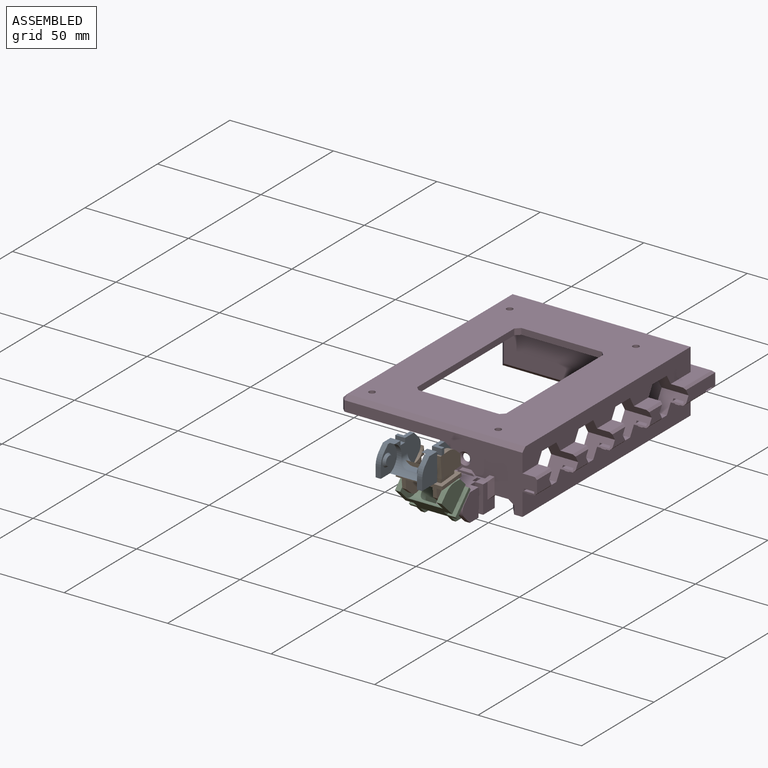
[diagram: assembled view]
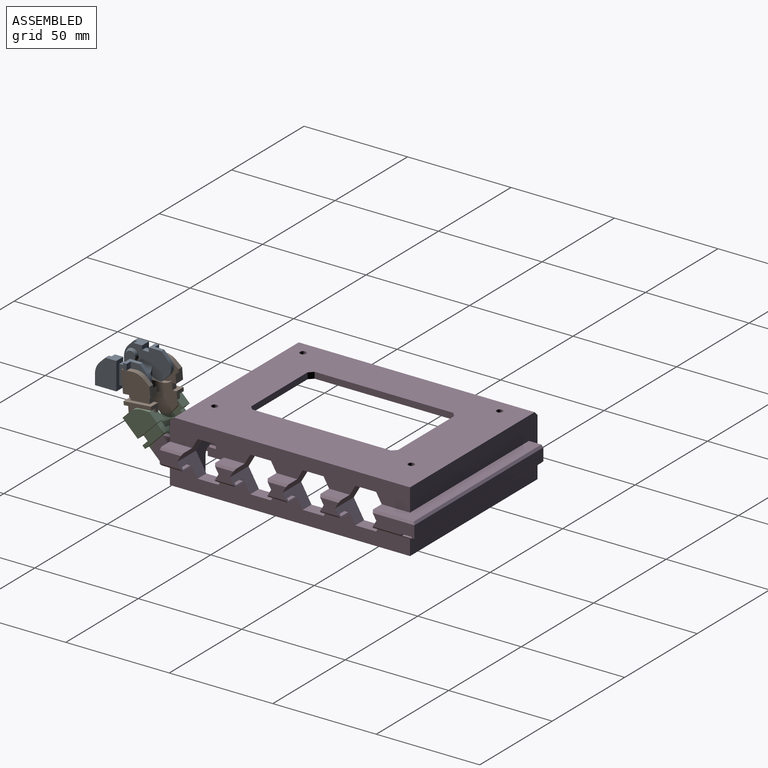
[diagram: assembled view, second angle]
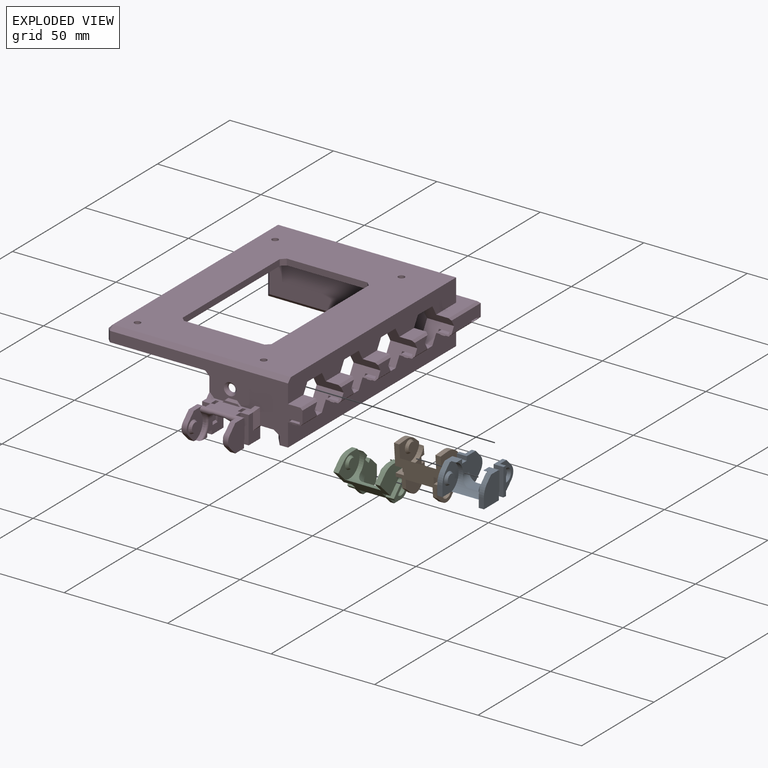
[diagram: exploded view]
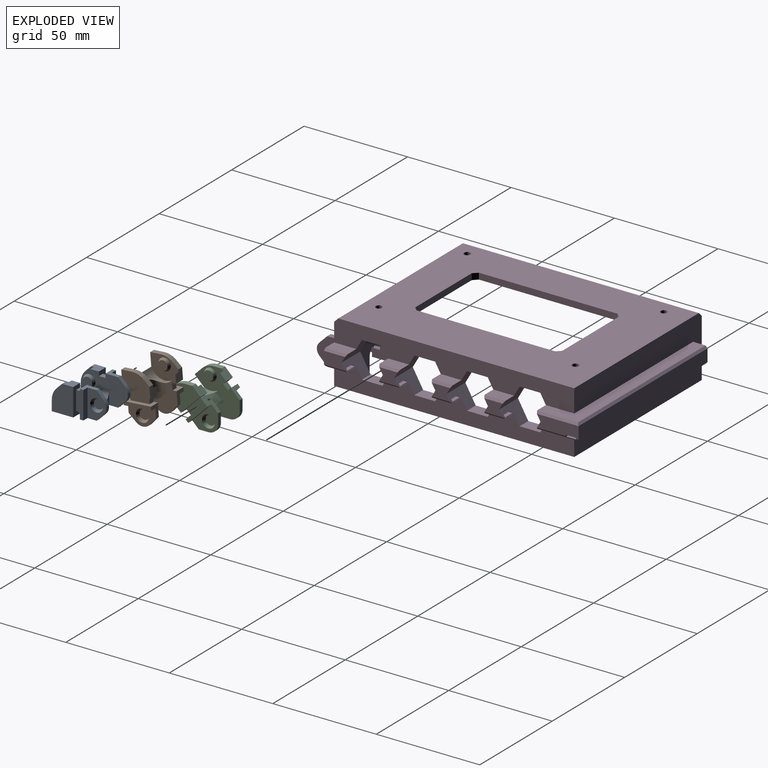
[diagram: exploded view, second angle]
ASSEMBLY  parts=4 mates=3
PART A: 54 faces, bbox 22.5x24.4x13.3 mm
  f0: plane 9.3x3.2mm, normal (-1,0,0), area 29.8mm2, adj f16,f17,f51,f53
  f1: plane 5.35x4.75mm, normal (0,0,1), area 22.5mm2, adj f4,f9,f17,f18,f40,f41
  f2: plane 9.3x3.2mm, normal (1,0,0), area 29.8mm2, adj f24,f25,f49,f52
  f3: plane 5.35x4.75mm, normal (0,0,1), area 22.5mm2, adj f5,f23,f24,f27,f39,f41
  f4: plane 18.07x13.3mm, normal (1,0,0), area 130.5mm2, adj f1,f6,f11,f16,f17,f19,f31,f32
  f5: plane 18.07x13.3mm, normal (-1,0,0), area 130.5mm2, adj f3,f6,f11,f24,f25,f26,f29,f30
  f6: plane 22.5x19.65mm, normal (0,0,-1), area 224.2mm2, adj f4,f5,f7,f8,f11,f13,f14,f15
  f7: plane 4.99x2.5mm, normal (0,-1,0), area 12.5mm2, adj f6,f23,f28,f39
  f8: plane 4.99x2.5mm, normal (0,-1,0), area 12.5mm2, adj f6,f10,f18,f40
  f9: plane 2.66x2.66mm, normal (0,-0.71,0.71), area 9.4mm2, adj f1,f10,f18,f40
  f10: cylinder r=8mm len=5.66mm, axis (1,0,0), area 15.7mm2, adj f8,f9,f18,f40
  f11: plane 13x6mm, normal (0,1,0), area 32.9mm2, adj f4,f5,f6,f12,f35,f36
  f12: plane 5.92x5mm, normal (0,0,1), area 29.6mm2, adj f11,f35,f36,f41
  f13: plane 13.3x9.1mm, normal (-1,0,0), area 67.8mm2, adj f6,f14,f19,f31,f32,f33,f44
  f14: plane 13.3x2.85mm, normal (0,1,0), area 37.9mm2, adj f6,f13,f15,f19
  f15: plane 13.3x1.7mm, normal (-1,0,0), area 22.6mm2, adj f6,f14,f16,f19
  f16: plane 13.3x4.75mm, normal (0,-1,0), area 36.1mm2, adj f0,f4,f6,f15,f19,f50,f51,f53
  f17: plane 13.3x4.75mm, normal (0,1,0), area 36.1mm2, adj f0,f1,f4,f6,f18,f50,f51,f53
  f18: plane 13.3x10.35mm, normal (-1,0,0), area 123.8mm2, adj f1,f6,f8,f9,f10,f17
  f19: plane 6.1x4.75mm, normal (0,0,1), area 16.4mm2, adj f4,f13,f14,f15,f16,f31
  f20: plane 13.3x1.7mm, normal (1,0,0), area 22.6mm2, adj f6,f21,f25,f26
  f21: plane 13.3x2.85mm, normal (0,1,0), area 37.9mm2, adj f6,f20,f22,f26
  f22: plane 13.3x9.1mm, normal (1,0,0), area 67.8mm2, adj f6,f21,f26,f29,f30,f34,f37
  f23: plane 13.3x10.35mm, normal (1,0,0), area 123.8mm2, adj f3,f6,f7,f24,f27,f28
  f24: plane 13.3x4.75mm, normal (0,1,0), area 36.1mm2, adj f2,f3,f5,f6,f23,f48,f49,f52
  f25: plane 13.3x4.75mm, normal (0,-1,0), area 36.1mm2, adj f2,f5,f6,f20,f26,f48,f49,f52
  f26: plane 6.1x4.75mm, normal (0,0,1), area 16.4mm2, adj f5,f20,f21,f22,f25,f29
  f27: plane 2.66x2.66mm, normal (0,-0.71,0.71), area 9.4mm2, adj f3,f23,f28,f39
  f28: cylinder r=8mm len=5.66mm, axis (1,0,0), area 15.7mm2, adj f7,f23,f27,f39
  f29: plane 3.33x3.33mm, normal (0,0.71,0.71), area 8.9mm2, adj f5,f22,f26,f34
  f30: plane 3.33x3.33mm, normal (0,0.71,-0.71), area 8.9mm2, adj f5,f6,f22,f34
  f31: plane 3.33x3.33mm, normal (0,0.71,0.71), area 8.9mm2, adj f4,f13,f19,f33
  f32: plane 3.33x3.33mm, normal (0,0.71,-0.71), area 8.9mm2, adj f4,f6,f13,f33
  f33: cylinder r=4.7mm len=6.65mm, axis (-1,0,0), area 14mm2, adj f4,f13,f31,f32
  f34: cylinder r=4.7mm len=6.65mm, axis (-1,0,0), area 14mm2, adj f5,f22,f29,f30
  f35: cylinder r=4mm len=5.92mm, axis (0,1,0), area 31.9mm2, adj f4,f11,f12,f41
  f36: cylinder r=4mm len=5.92mm, axis (0,-1,0), area 31.9mm2, adj f5,f11,f12,f41
  f37: cone r=3.1mm half-angle=30deg, axis (1,0,0), area 27.4mm2, adj f22,f38
  f38: plane 4.58x4.58mm, normal (1,0,0), area 16.5mm2, adj f37
  f39: plane 13.3x11.1mm, normal (-1,0,0), area 88.3mm2, adj f3,f6,f7,f27,f28,f41,f42
  f40: plane 13.3x11.1mm, normal (1,0,0), area 88.3mm2, adj f1,f6,f8,f9,f10,f41,f46
  f41: cylinder r=7mm len=17.5mm, axis (1,0,0), area 135.2mm2, adj f1,f3,f4,f5,f6,f12,f35,f36
  f42: cone r=3mm half-angle=30deg, axis (1,0,0), area 23.9mm2, adj f39,f43
  f43: plane 4.56x4.56mm, normal (-1,0,0), area 16.3mm2, adj f42
  f44: cone r=3.1mm half-angle=30deg, axis (-1,0,0), area 27.4mm2, adj f13,f45
  f45: plane 4.58x4.58mm, normal (-1,0,0), area 16.5mm2, adj f44
  f46: cone r=3mm half-angle=30deg, axis (-1,0,0), area 23.9mm2, adj f40,f47
  f47: plane 4.56x4.56mm, normal (1,0,0), area 16.3mm2, adj f46
  f48: plane 3.2x2mm, normal (1,0,0), area 6.4mm2, adj f6,f24,f25,f49
  f49: plane 3.2x2mm, normal (0,0,-1), area 6.4mm2, adj f2,f24,f25,f48
  f50: plane 3.2x2mm, normal (-1,0,0), area 6.4mm2, adj f6,f16,f17,f51
  f51: plane 3.2x2mm, normal (0,0,-1), area 6.4mm2, adj f0,f16,f17,f50
  f52: plane 3.2x2.75mm, normal (0,0,1), area 8.8mm2, adj f2,f5,f24,f25
  f53: plane 3.2x2.75mm, normal (0,0,1), area 8.8mm2, adj f0,f4,f16,f17
PART B: same geometry as A
PART C: same geometry as A
PART D: 229 faces, bbox 142.5x95.3x33.7 mm
  f0: plane 9.3x1.7mm, normal (1,0,0), area 11.3mm2, adj f1,f2,f8,f9,f10,f207,f212
  f1: plane 3.53x3.4mm, normal (0,-1,0), area 12mm2, adj f0,f8,f10,f208
  f2: plane 8.5x3.4mm, normal (0,1,0), area 28.9mm2, adj f0,f8,f208,f212
  f3: plane 3.53x3.4mm, normal (0,1,0), area 12mm2, adj f4,f8,f186,f210
  f4: plane 9.3x1.7mm, normal (1,0,0), area 11.3mm2, adj f3,f5,f8,f175,f186,f209,f211
  f5: plane 8.5x3.4mm, normal (0,-1,0), area 28.9mm2, adj f4,f8,f210,f211
  f6: plane 2.4x2mm, normal (0.71,0,-0.71), area 4mm2, adj f8,f43,f167,f221
  f7: plane 4.4x2mm, normal (0.71,0,-0.71), area 6.8mm2, adj f8,f43,f214,f222
  f8: plane 22.5x14.2mm, normal (0,0,-1), area 168.2mm2, adj f0,f1,f2,f3,f4,f5,f6,f7
  f9: plane 13.84x7.3mm, normal (0,1,0), area 64mm2, adj f0,f10,f18,f55,f168,f171,f172,f185
  f10: cylinder r=4mm len=12.06mm, axis (-1,0,0), area 62.5mm2, adj f0,f1,f9,f55,f178,f197,f198,f208
  f11: plane 2.5x0.03mm, normal (1,0,0), area 0.1mm2, adj f14,f15,f169,f194
  f12: plane 3.84x3.84mm, normal (0.71,0,0.71), area 13.6mm2, adj f14,f18,f169,f194
  f13: plane 3.84x3.84mm, normal (0.71,0,-0.71), area 13.6mm2, adj f8,f15,f169,f194
  f14: cylinder r=3.95mm len=2.79mm, axis (0,1,0), area 7.8mm2, adj f11,f12,f169,f194
  f15: cylinder r=3.95mm len=2.79mm, axis (0,1,0), area 7.8mm2, adj f11,f13,f169,f194
  f16: plane 9.3x3.2mm, normal (0,-1,0), area 29.8mm2, adj f168,f171,f184,f185
  f17: plane 9.3x3.2mm, normal (0,1,0), area 29.8mm2, adj f173,f174,f180,f182
  f18: plane 6.32x5.07mm, normal (0,0,1), area 25.1mm2, adj f9,f12,f168,f169,f193,f194,f196
  f19: plane 6.32x5.07mm, normal (0,0,1), area 25.1mm2, adj f173,f175,f176,f187,f191,f195,f202
  f20: plane 106x25mm, normal (0,1,0), area 1541.8mm2, adj f42,f67,f68,f69,f70,f71,f72,f73
  f21: plane 20.13x6mm, normal (0,-1,0), area 112.6mm2, adj f85,f90,f105,f106,f108,f141,f164,f165
  f22: plane 88x19.71mm, normal (0,0,1), area 380.6mm2, adj f23,f31,f40,f45,f90,f104,f106,f107
  f23: plane 13.83x0.2mm, normal (0,-0.71,0.71), area 3.9mm2, adj f22,f27,f90,f138
  f24: plane 10.25x0.2mm, normal (0,-0.71,0.71), area 2.9mm2, adj f28,f35,f84,f88
  f25: plane 10.25x0.2mm, normal (0,-0.71,0.71), area 2.9mm2, adj f29,f36,f73,f82
  f26: plane 10.25x0.2mm, normal (0,-0.71,0.71), area 2.9mm2, adj f30,f37,f72,f77
  f27: plane 13.83x2mm, normal (0,0,1), area 27.6mm2, adj f23,f31,f90,f138
  f28: plane 10.25x2mm, normal (0,0,1), area 20.5mm2, adj f24,f32,f84,f88
  f29: plane 10.25x2mm, normal (0,0,1), area 20.5mm2, adj f25,f33,f73,f82
  f30: plane 10.25x2mm, normal (0,0,1), area 20.5mm2, adj f26,f34,f72,f77
  f31: plane 13.83x0.2mm, normal (0,0.71,0.71), area 3.9mm2, adj f22,f27,f90,f138
  f32: plane 10.25x0.2mm, normal (0,0.71,0.71), area 2.9mm2, adj f28,f84,f88,f92
  f33: plane 10.25x0.2mm, normal (0,0.71,0.71), area 2.9mm2, adj f29,f73,f82,f95
  f34: plane 10.25x0.2mm, normal (0,0.71,0.71), area 2.9mm2, adj f30,f72,f77,f98
  f35: plane 10.02x1.6mm, normal (0,0,1), area 16mm2, adj f24,f84,f88,f110
  f36: plane 10.02x1.6mm, normal (0,0,1), area 16mm2, adj f25,f73,f82,f113
  f37: plane 10.02x1.6mm, normal (0,0,1), area 16mm2, adj f26,f72,f77,f114
  f38: plane 10.71x1.6mm, normal (0,0,1), area 17.1mm2, adj f43,f70,f117,f135
  f39: plane 116x88mm, normal (0,0,1), area 808mm2, adj f40,f43,f44,f45,f120,f122,f123
  f40: plane 116x11mm, normal (0,-1,0), area 1039.4mm2, adj f22,f39,f43,f45,f70,f71,f72,f73
  f41: plane 116x11mm, normal (0,-1,0), area 1037.4mm2, adj f43,f45,f54,f67,f68,f69,f74,f75
  f42: plane 107x79mm, normal (0,0,1), area 5246.1mm2, adj f20,f46,f47,f48,f52,f55,f56,f58
  f43: plane 93x28mm, normal (1,0,0), area 957.8mm2, adj f6,f7,f8,f38,f39,f40,f41,f57
  f44: plane 114x28mm, normal (0,1,0), area 664.8mm2, adj f39,f45,f57,f119,f125,f126,f219
  f45: plane 88x30mm, normal (-1,0,0), area 1982mm2, adj f22,f39,f40,f41,f44,f54,f91,f104
  f46: plane 67x3mm, normal (0,1,0), area 201mm2, adj f42,f54,f131,f133
  f47: plane 39x3mm, normal (1,0,0), area 117mm2, adj f42,f54,f131,f132
  f48: plane 67x3mm, normal (0,-1,0), area 201mm2, adj f42,f54,f132,f134
  f49: cylinder r=1.5mm len=8mm, axis (0,0,1), area 75.4mm2, adj f54,f63
  f50: cylinder r=1.5mm len=8mm, axis (0,0,1), area 75.4mm2, adj f54,f61
  f51: cylinder r=1.5mm len=8mm, axis (0,0,1), area 75.4mm2, adj f54,f59
  f52: plane 39x3mm, normal (-1,0,0), area 117mm2, adj f42,f54,f133,f134
  f53: cylinder r=1.5mm len=8mm, axis (0,0,1), area 75.4mm2, adj f54,f65
  f54: plane 114x86mm, normal (0,0,-1), area 6730.7mm2, adj f41,f45,f46,f47,f48,f49,f50,f51
  f55: plane 75x28.3mm, normal (-1,0,0), area 809.9mm2, adj f9,f10,f42,f57,f118,f130,f166,f167
  f56: plane 103x4mm, normal (0,-1,0), area 412mm2, adj f42,f57,f129,f130
  f57: plane 109.17x48mm, normal (0,0,1), area 459.7mm2, adj f43,f44,f55,f56,f125,f130,f218,f219
  f58: cylinder r=3.5mm len=7mm, axis (0,0,-1), area 110mm2, adj f42,f59
  f59: plane 7x7mm, normal (0,0,1), area 31.4mm2, adj f51,f58
  f60: cylinder r=3.5mm len=7mm, axis (0,0,-1), area 110mm2, adj f42,f61
  f61: plane 7x7mm, normal (0,0,1), area 31.4mm2, adj f50,f60
  f62: cylinder r=3.5mm len=7mm, axis (0,0,-1), area 110mm2, adj f42,f63
  f63: plane 7x7mm, normal (0,0,1), area 31.4mm2, adj f49,f62
  f64: cylinder r=3.5mm len=7mm, axis (0,0,-1), area 110mm2, adj f42,f65
  f65: plane 7x7mm, normal (0,0,1), area 31.4mm2, adj f53,f64
  f66: plane 78x25mm, normal (1,0,0), area 1932mm2, adj f42,f119,f120,f121,f129,f220
  f67: plane 13x8.66mm, normal (0.87,0,0.5), area 91.8mm2, adj f20,f41,f68,f72,f99,f100,f115
  f68: plane 10x6mm, normal (0,0,1), area 60mm2, adj f20,f41,f67,f69
  f69: plane 13x8.66mm, normal (-0.87,0,0.5), area 91.8mm2, adj f20,f41,f68,f70,f102,f103,f116
  f70: plane 13x8.66mm, normal (-0.87,0,-0.5), area 86.5mm2, adj f20,f38,f40,f69,f71,f101,f103,f117
  f71: plane 10x6mm, normal (0,0,-1), area 60mm2, adj f20,f40,f70,f72
  f72: plane 13x8.66mm, normal (0.87,0,-0.5), area 86.5mm2, adj f20,f26,f30,f34,f37,f40,f67,f71
  f73: plane 13x8.66mm, normal (0.87,0,-0.5), area 86.5mm2, adj f20,f25,f29,f33,f36,f40,f74,f78
  f74: plane 13x8.66mm, normal (0.87,0,0.5), area 91.8mm2, adj f20,f41,f73,f75,f96,f97,f112
  f75: plane 10x6mm, normal (0,0,1), area 60mm2, adj f20,f41,f74,f76
  f76: plane 13x8.66mm, normal (-0.87,0,0.5), area 91.8mm2, adj f20,f41,f75,f77,f99,f100,f115
  f77: plane 13x8.66mm, normal (-0.87,0,-0.5), area 86.5mm2, adj f20,f26,f30,f34,f37,f40,f76,f78
  f78: plane 10x6mm, normal (0,0,-1), area 60mm2, adj f20,f40,f73,f77
  f79: plane 13x8.66mm, normal (0.87,0,0.5), area 91.8mm2, adj f20,f41,f80,f84,f93,f94,f111
  f80: plane 10x6mm, normal (0,0,1), area 60mm2, adj f20,f41,f79,f81
  f81: plane 13x8.66mm, normal (-0.87,0,0.5), area 91.8mm2, adj f20,f41,f80,f82,f96,f97,f112
  f82: plane 13x8.66mm, normal (-0.87,0,-0.5), area 86.5mm2, adj f20,f25,f29,f33,f36,f40,f81,f83
  f83: plane 10x6mm, normal (0,0,-1), area 60mm2, adj f20,f40,f82,f84
  f84: plane 13x8.66mm, normal (0.87,0,-0.5), area 86.5mm2, adj f20,f24,f28,f32,f35,f40,f79,f83
  f85: plane 13x8.66mm, normal (0.87,0,0.5), area 91.8mm2, adj f20,f21,f41,f86,f90,f91,f108
  f86: plane 10x6mm, normal (0,0,1), area 60mm2, adj f20,f41,f85,f87
  f87: plane 13x8.66mm, normal (-0.87,0,0.5), area 91.8mm2, adj f20,f41,f86,f88,f93,f94,f111
  f88: plane 13x8.66mm, normal (-0.87,0,-0.5), area 86.5mm2, adj f20,f24,f28,f32,f35,f40,f87,f89
  f89: plane 10x6mm, normal (0,0,-1), area 60mm2, adj f20,f40,f88,f90
  f90: plane 13x8.66mm, normal (0.87,0,-0.5), area 86.5mm2, adj f20,f21,f22,f23,f27,f31,f40,f85
  f91: plane 88x19.71mm, normal (0,0,-1), area 610.3mm2, adj f41,f45,f85,f104,f108,f109
  f92: plane 10.02x2mm, normal (0,0,1), area 20mm2, adj f32,f40,f84,f88
  f93: plane 10.02x6mm, normal (0,0,-1), area 60.1mm2, adj f41,f79,f87,f111
  f94: plane 8.86x6mm, normal (0,-1,0), area 42.8mm2, adj f79,f84,f87,f88,f110,f111
  f95: plane 10.02x2mm, normal (0,0,1), area 20mm2, adj f33,f40,f73,f82
  f96: plane 10.02x6mm, normal (0,0,-1), area 60.1mm2, adj f41,f74,f81,f112
  f97: plane 8.86x6mm, normal (0,-1,0), area 42.8mm2, adj f73,f74,f81,f82,f112,f113
  f98: plane 10.02x2mm, normal (0,0,1), area 20mm2, adj f34,f40,f72,f77
  f99: plane 10.02x6mm, normal (0,0,-1), area 60.1mm2, adj f41,f67,f76,f115
  f100: plane 8.86x6mm, normal (0,-1,0), area 42.8mm2, adj f67,f72,f76,f77,f114,f115
  f101: plane 10.71x2mm, normal (0,0,1), area 21.4mm2, adj f40,f43,f70,f137
  f102: plane 10.71x6mm, normal (0,0,-1), area 64.3mm2, adj f41,f43,f69,f116
  f103: plane 10.13x6mm, normal (0,-1,0), area 55.6mm2, adj f43,f69,f70,f116,f117
  f104: plane 8.2x7mm, normal (0,1,0), area 50.4mm2, adj f22,f45,f91,f105,f107,f109,f139,f141
  f105: plane 89x6mm, normal (-1,0,0), area 534mm2, adj f21,f104,f107,f109
  f106: plane 20.71x1mm, normal (0,-0.71,0.71), area 25.3mm2, adj f21,f22,f90,f107,f139,f164,f165
  f107: plane 89x1mm, normal (-0.71,0,0.71), area 125.2mm2, adj f22,f104,f105,f106
  f108: plane 20.71x1mm, normal (0,-0.71,-0.71), area 28.2mm2, adj f21,f85,f91,f109
  f109: plane 89x1mm, normal (-0.71,0,-0.71), area 125.2mm2, adj f91,f104,f105,f108
  f110: plane 10.02x1mm, normal (0,-0.71,0.71), area 13.4mm2, adj f35,f84,f88,f94
  f111: plane 10.02x1mm, normal (0,-0.71,-0.71), area 13.4mm2, adj f79,f87,f93,f94
  f112: plane 10.02x1mm, normal (0,-0.71,-0.71), area 13.4mm2, adj f74,f81,f96,f97
  f113: plane 10.02x1mm, normal (0,-0.71,0.71), area 13.4mm2, adj f36,f73,f82,f97
  f114: plane 10.02x1mm, normal (0,-0.71,0.71), area 13.4mm2, adj f37,f72,f77,f100
  f115: plane 10.02x1mm, normal (0,-0.71,-0.71), area 13.4mm2, adj f67,f76,f99,f100
  f116: plane 10.71x1mm, normal (0,-0.71,-0.71), area 14.7mm2, adj f43,f69,f102,f103
  f117: plane 10.71x1mm, normal (0,-0.71,0.71), area 14.7mm2, adj f38,f43,f70,f103
  f118: plane 23x2mm, normal (-0.71,0.71,0), area 62.2mm2, adj f20,f42,f55,f217
  f119: plane 21x2mm, normal (0.71,0.71,0), area 56.6mm2, adj f44,f66,f120,f219
  f120: plane 80x2mm, normal (0.71,0,0.71), area 223.4mm2, adj f39,f66,f119,f122
  f121: plane 25x2mm, normal (0.71,0.71,0), area 70.7mm2, adj f20,f42,f66,f122
  f122: plane 4x4mm, normal (0.58,0.58,0.58), area 10.4mm2, adj f39,f120,f121,f123
  f123: plane 108x2mm, normal (0,0.71,0.71), area 302.6mm2, adj f20,f39,f122,f124
  f124: plane 4x2mm, normal (0.71,0.71,0), area 8.5mm2, adj f20,f43,f123,f216
  f125: plane 5x2mm, normal (0.71,0.71,0), area 14.1mm2, adj f43,f44,f57,f127
  f126: plane 114x2mm, normal (0,0.71,-0.71), area 322.4mm2, adj f44,f45,f54,f127
  f127: plane 2x2mm, normal (0.58,0.58,-0.58), area 3.5mm2, adj f125,f126,f128
  f128: plane 86x2mm, normal (0.71,0,-0.71), area 243.2mm2, adj f41,f43,f54,f127
  f129: plane 6x2mm, normal (0.71,-0.71,0), area 14.1mm2, adj f42,f56,f66,f220
  f130: plane 4x2mm, normal (-0.71,-0.71,0), area 11.3mm2, adj f42,f55,f56,f57
  f131: plane 3x2mm, normal (0.71,0.71,0), area 8.5mm2, adj f42,f46,f47,f54
  f132: plane 3x2mm, normal (0.71,-0.71,0), area 8.5mm2, adj f42,f47,f48,f54
  f133: plane 3x2mm, normal (-0.71,0.71,0), area 8.5mm2, adj f42,f46,f52,f54
  f134: plane 3x2mm, normal (-0.71,-0.71,0), area 8.5mm2, adj f42,f48,f52,f54
  f135: plane 10.83x0.2mm, normal (0,-0.71,0.71), area 3mm2, adj f38,f43,f70,f136
  f136: plane 10.83x2mm, normal (0,0,1), area 21.6mm2, adj f43,f70,f135,f137
  f137: plane 10.83x0.2mm, normal (0,0.71,0.71), area 3mm2, adj f43,f70,f101,f136
  f138: plane 2.4x0.2mm, normal (-1,0,0), area 0.4mm2, adj f22,f23,f27,f31
  f139: plane 88.6x19.06mm, normal (0,0,-1), area 513.3mm2, adj f90,f104,f106,f140,f142,f163,f164,f165
  f140: plane 14.06x1mm, normal (0,1,0), area 13.8mm2, adj f90,f139,f141,f164
  f141: plane 89x18.49mm, normal (0,0,1), area 512.4mm2, adj f21,f90,f104,f140,f142,f163,f164,f165
  f142: plane 14.06x1mm, normal (0,-1,0), area 13.8mm2, adj f90,f139,f141,f163
  f143: plane 9.33x5mm, normal (0,0,-1), area 46.6mm2, adj f84,f88,f144,f146
  f144: plane 9.33x1mm, normal (0,1,0), area 8.7mm2, adj f84,f88,f143,f145
  f145: plane 8.17x5mm, normal (0,0,1), area 40.9mm2, adj f84,f88,f144,f146
  f146: plane 9.33x1mm, normal (0,-1,0), area 8.7mm2, adj f84,f88,f143,f145
  f147: plane 9.33x5mm, normal (0,0,-1), area 46.6mm2, adj f73,f82,f148,f150
  f148: plane 9.33x1mm, normal (0,1,0), area 8.7mm2, adj f73,f82,f147,f149
  f149: plane 8.17x5mm, normal (0,0,1), area 40.9mm2, adj f73,f82,f148,f150
  f150: plane 9.33x1mm, normal (0,-1,0), area 8.7mm2, adj f73,f82,f147,f149
  f151: plane 9.33x5mm, normal (0,0,-1), area 46.6mm2, adj f72,f77,f152,f154
  f152: plane 9.33x1mm, normal (0,1,0), area 8.7mm2, adj f72,f77,f151,f153
  f153: plane 8.17x5mm, normal (0,0,1), area 40.9mm2, adj f72,f77,f152,f154
  f154: plane 9.33x1mm, normal (0,-1,0), area 8.7mm2, adj f72,f77,f151,f153
  f155: plane 10.36x1mm, normal (0,-1,0), area 10.1mm2, adj f43,f70,f156,f158
  f156: plane 9.79x5mm, normal (0,0,1), area 48.9mm2, adj f43,f70,f155,f157
  f157: plane 10.36x1mm, normal (0,1,0), area 10.1mm2, adj f43,f70,f156,f158
  f158: plane 10.36x5mm, normal (0,0,-1), area 51.8mm2, adj f43,f70,f155,f157
  f159: plane 2.4x0.2mm, normal (0,-1,0), area 0.4mm2, adj f22,f160,f161,f162
  f160: plane 82x0.2mm, normal (-0.71,0,0.71), area 23.2mm2, adj f22,f104,f159,f161
  f161: plane 82x2mm, normal (0,0,1), area 164mm2, adj f104,f159,f160,f162
  f162: plane 82x0.2mm, normal (0.71,0,0.71), area 23.2mm2, adj f22,f104,f159,f161
  f163: plane 82.7x1mm, normal (-1,0,0), area 82.7mm2, adj f104,f139,f141,f142
  f164: plane 1.3x1mm, normal (-1,0,0), area 1.2mm2, adj f21,f106,f139,f140,f141
  f165: plane 89x1mm, normal (1,0,0), area 88.9mm2, adj f21,f104,f106,f139,f141
  f166: plane 13.3x8mm, normal (0,-1,0), area 66.4mm2, adj f8,f55,f171,f172,f213,f214
  f167: plane 22.3x8mm, normal (0,1,0), area 135.4mm2, adj f6,f8,f43,f55,f174,f177,f218
  f168: plane 13.3x4.75mm, normal (-1,0,0), area 36.1mm2, adj f8,f9,f16,f18,f169,f183,f184,f185
  f169: plane 13.3x11mm, normal (0,-1,0), area 120.6mm2, adj f8,f11,f12,f13,f14,f15,f18,f168
  f170: plane 2.5x0.03mm, normal (1,0,0), area 0.1mm2, adj f176,f189,f190,f195
  f171: plane 13.3x4.75mm, normal (1,0,0), area 36.1mm2, adj f8,f9,f16,f166,f172,f183,f184,f185
  f172: plane 8x4.75mm, normal (0,0,1), area 38mm2, adj f9,f55,f166,f171
  f173: plane 13.3x4.75mm, normal (-1,0,0), area 36.1mm2, adj f8,f17,f19,f175,f176,f180,f181,f182
  f174: plane 13.3x4.75mm, normal (1,0,0), area 36.1mm2, adj f8,f17,f167,f175,f177,f180,f181,f182
  f175: plane 13.84x7.3mm, normal (0,-1,0), area 64mm2, adj f4,f19,f55,f173,f174,f177,f180,f186
  f176: plane 13.3x11mm, normal (0,1,0), area 120.6mm2, adj f8,f19,f170,f173,f187,f188,f189,f190
  f177: plane 8x4.75mm, normal (0,0,1), area 38mm2, adj f55,f167,f174,f175
  f178: plane 12.06x5mm, normal (0,0,1), area 60.3mm2, adj f10,f55,f186,f199
  f179: plane 6.67x3mm, normal (0,0,1), area 17.2mm2, adj f43,f55,f213,f216,f217
  f180: plane 3.2x2.75mm, normal (0,0,1), area 8.8mm2, adj f17,f173,f174,f175
  f181: plane 3.2x2mm, normal (0,1,0), area 6.4mm2, adj f8,f173,f174,f182
  f182: plane 3.2x2mm, normal (0,0,-1), area 6.4mm2, adj f17,f173,f174,f181
  f183: plane 3.2x2mm, normal (0,-1,0), area 6.4mm2, adj f8,f168,f171,f184
  f184: plane 3.2x2mm, normal (0,0,-1), area 6.4mm2, adj f16,f168,f171,f183
  f185: plane 3.2x2.75mm, normal (0,0,1), area 8.8mm2, adj f9,f16,f168,f171
  f186: cylinder r=4mm len=12.06mm, axis (1,0,0), area 62.5mm2, adj f3,f4,f55,f175,f178,f200,f201,f210
  f187: plane 3.84x3.84mm, normal (0.71,0,0.71), area 13.6mm2, adj f19,f176,f189,f195
  f188: plane 3.84x3.84mm, normal (0.71,0,-0.71), area 13.6mm2, adj f8,f176,f190,f195
  f189: cylinder r=3.95mm len=2.79mm, axis (0,1,0), area 7.8mm2, adj f170,f176,f187,f195
  f190: cylinder r=3.95mm len=2.79mm, axis (0,1,0), area 7.8mm2, adj f170,f176,f188,f195
  f191: cylinder r=7mm len=11.13mm, axis (0,1,0), area 22mm2, adj f19,f192,f195,f201,f202
  f192: cylinder r=1.33mm len=17.5mm, axis (0,1,0), area 39.4mm2, adj f8,f191,f193,f194,f195,f198,f199,f200
  f193: cylinder r=7mm len=11.13mm, axis (0,1,0), area 22mm2, adj f18,f192,f194,f196,f197
  f194: plane 13.3x11.1mm, normal (0,1,0), area 79.1mm2, adj f8,f11,f12,f13,f14,f15,f18,f192
  f195: plane 13.3x11.1mm, normal (0,-1,0), area 79.1mm2, adj f8,f19,f170,f187,f188,f189,f190,f191
  f196: torus R=7.9mm, axis (0,-1,0), area 12.5mm2, adj f9,f18,f193,f197
  f197: bspline ~5.04x3.79mm, area 5.8mm2, adj f10,f193,f196,f198
  f198: bspline ~2.3x1.9mm, area 3.3mm2, adj f10,f192,f197,f199
  f199: cylinder r=0.9mm len=5mm, axis (0,1,0), area 9.6mm2, adj f178,f192,f198,f200
  f200: bspline ~2.55x1.92mm, area 3.3mm2, adj f186,f192,f199,f201
  f201: bspline ~5.04x3.79mm, area 5.8mm2, adj f186,f191,f200,f202
  f202: torus R=7.9mm, axis (0,1,0), area 12.5mm2, adj f19,f175,f191,f201
  f203: cone r=3mm half-angle=30deg, axis (0,1,0), area 23.9mm2, adj f195,f204
  f204: plane 4.56x4.56mm, normal (0,-1,0), area 16.3mm2, adj f203
  f205: cone r=3mm half-angle=30deg, axis (0,-1,0), area 23.9mm2, adj f194,f206
  f206: plane 4.56x4.56mm, normal (0,1,0), area 16.3mm2, adj f205
  f207: plane 3.4x0.05mm, normal (0,0,-1), area 0.2mm2, adj f0,f9,f208,f212
  f208: plane 9.3x1.7mm, normal (-1,0,0), area 11.3mm2, adj f1,f2,f8,f9,f10,f207,f212
  f209: plane 3.4x0.05mm, normal (0,0,-1), area 0.2mm2, adj f4,f175,f210,f211
  f210: plane 9.3x1.7mm, normal (-1,0,0), area 11.3mm2, adj f3,f5,f8,f175,f186,f209,f211
  f211: plane 3.4x0.8mm, normal (0,-0.71,-0.71), area 3.8mm2, adj f4,f5,f209,f210
  f212: plane 3.4x0.8mm, normal (0,0.71,-0.71), area 3.8mm2, adj f0,f2,f207,f208
  f213: plane 5x2mm, normal (0,-0.71,0.71), area 11.3mm2, adj f55,f166,f179,f214
  f214: plane 10x2mm, normal (0.71,-0.71,0), area 22.6mm2, adj f7,f43,f166,f213
  f215: plane 6.3x1mm, normal (0.71,0,-0.71), area 7.5mm2, adj f43,f223,f224,f225
  f216: plane 4x2mm, normal (0.5,0.5,0.71), area 6.3mm2, adj f43,f124,f179,f217
  f217: plane 3.83x2mm, normal (0,0.71,0.71), area 6.8mm2, adj f20,f118,f179,f216
  f218: plane 3x2mm, normal (0,0.71,0.71), area 8.5mm2, adj f43,f55,f57,f167
  f219: plane 4x2mm, normal (0.5,0.5,0.71), area 6.3mm2, adj f44,f57,f119,f220
  f220: plane 3.83x2mm, normal (0.71,0,0.71), area 6.8mm2, adj f57,f66,f129,f219
  f221: plane 2x2mm, normal (0,-0.71,-0.71), area 2.8mm2, adj f6,f8,f43
  f222: plane 2x2mm, normal (0,0.71,-0.71), area 2.8mm2, adj f7,f8,f43
  f223: plane 2x2mm, normal (0,-0.71,-0.71), area 2.1mm2, adj f8,f43,f215,f224
  f224: plane 8.3x1mm, normal (1,0,0), area 7.3mm2, adj f8,f215,f223,f225
  f225: plane 2x2mm, normal (0,0.71,-0.71), area 2.1mm2, adj f8,f43,f215,f224
  f226: cylinder r=2mm len=4mm, axis (1,0,0), area 12.6mm2, adj f227,f228
  f227: cone r=2mm half-angle=45deg, axis (-1,0,0), area 22.2mm2, adj f55,f226
  f228: cone r=2mm half-angle=45deg, axis (1,0,0), area 22.2mm2, adj f43,f226
PLACE A t=(-2.26,57.5,37.58)mm
PLACE B rot(axis=(-1,0,0),85.4deg) t=(-2.26,70.19,47.78)mm
PLACE C rot(axis=(-1,0,0),44.7deg) t=(-2.26,70.82,26.88)mm
PLACE D rot(axis=(-0.71,0.71,0),180deg) t=(-35.26,161.07,39.45)mm
MATE revolute A.f37 <-> B.f41  axis (1,0,0) through (-13.51,77.15,44.23)mm
MATE revolute B.f37 <-> C.f41  axis (1,0,0) through (-13.51,78.41,28.73)mm
MATE revolute C.f37 <-> D.f191  axis (1,0,0) through (-13.51,89.47,17.8)mm
